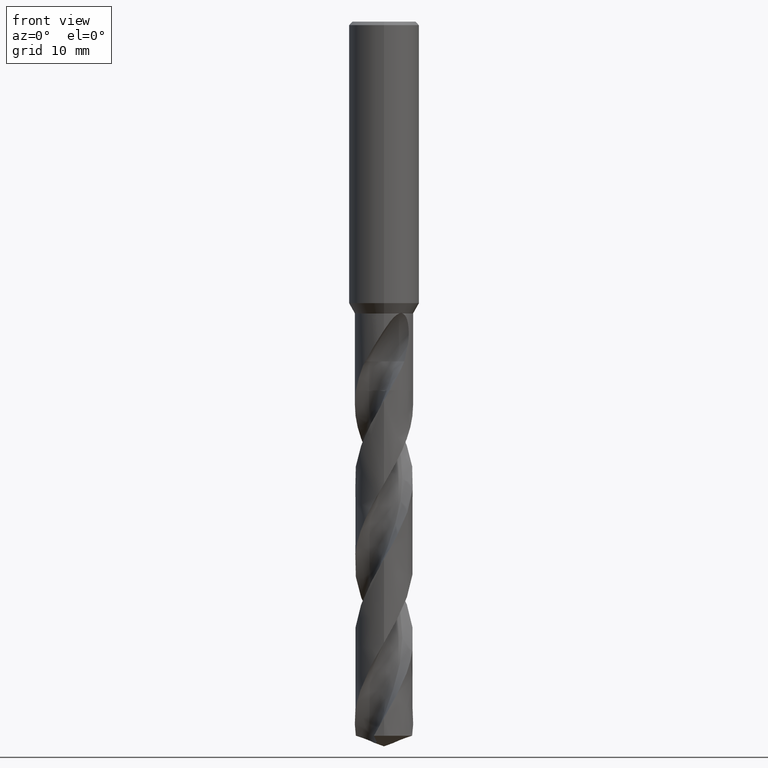
[diagram: clean part render]
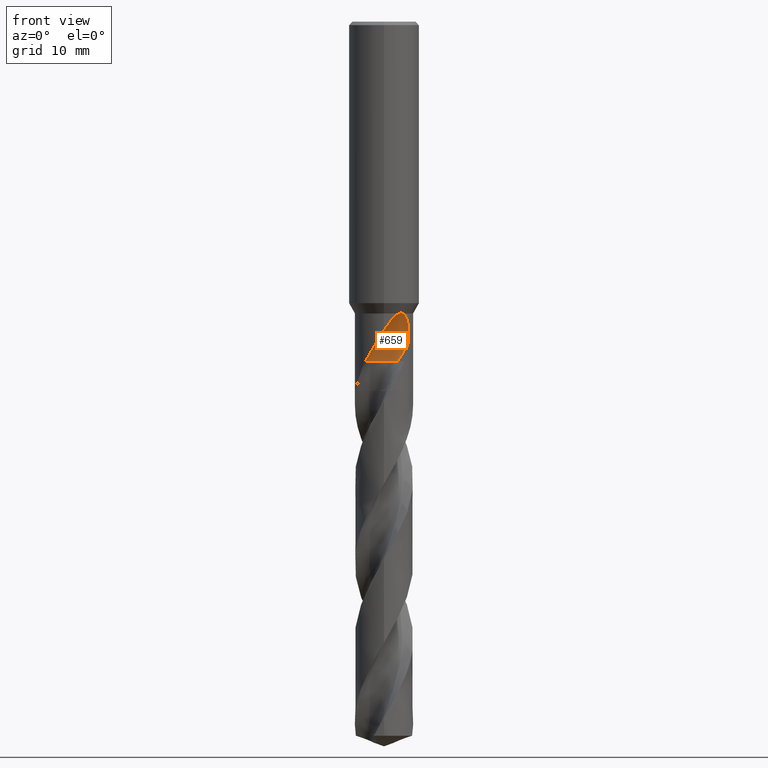
[diagram: same view with one face highlighted and labeled with its STEP entity id]
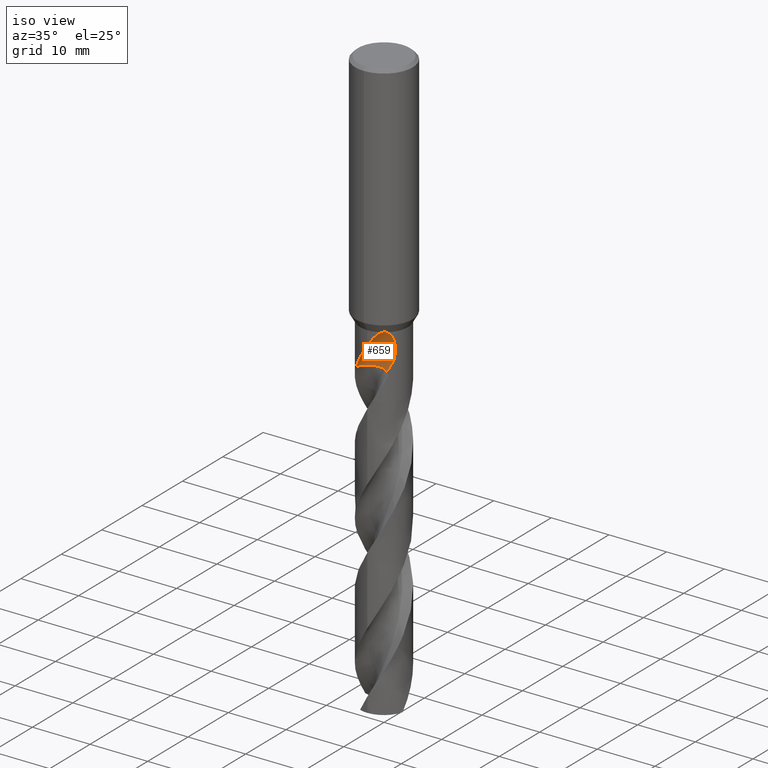
[diagram: same view with one face highlighted and labeled with its STEP entity id]
A machine part, front view. The second image highlights one B-rep face of the part: STEP entity #659.
A second angle (iso view) of the same face is appended — the face is thin or edge-on in the first view.
In plain terms, the highlighted face is a SurfaceOfRevolution surface.
Its self-contained STEP definition (entity closure, byte-faithful):
#413=EDGE_CURVE('',#805,#531,#994,.T.);
#417=VERTEX_POINT('',#998);
#463=EDGE_CURVE('',#815,#759,#1051,.T.);
#497=VERTEX_POINT('',#1088);
#509=EDGE_CURVE('',#805,#417,#1101,.T.);
#531=VERTEX_POINT('',#1125);
#617=EDGE_CURVE('',#531,#715,#1218,.T.);
#633=EDGE_CURVE('',#497,#815,#1236,.T.);
#659=ADVANCED_FACE('',(#1263),#1264,.F.);
#715=VERTEX_POINT('',#1325);
#737=EDGE_CURVE('',#715,#759,#1348,.T.);
#759=VERTEX_POINT('',#1373);
#765=EDGE_CURVE('',#417,#497,#1379,.T.);
#805=VERTEX_POINT('',#1423);
#815=VERTEX_POINT('',#1435);
#994=CIRCLE('',#2428,2.76666667);
#998=CARTESIAN_POINT('',(1.22860231174271E-012,-4.15,-43.8684424714781));
#1051=B_SPLINE_CURVE_WITH_KNOTS('',3,(#2738,#2739,#2740,#2741,#2742,#2743,#2744,#2745,#2746,#2747,#2748,#2749),.UNSPECIFIED.,.F.,.F.,(4,2,2,2,2,4),(0.0,0.393521227080139,0.909762333545459,1.67811237082579,2.75520816968707,3.80387425481552),.UNSPECIFIED.);
#1088=CARTESIAN_POINT('',(2.21231897514117,-3.51114578908799,-41.4722431864335));
#1101=B_SPLINE_CURVE_WITH_KNOTS('',3,(#3149,#3150,#3151,#3152,#3153,#3154,#3155,#3156,#3157,#3158,#3159,#3160,#3161,#3162,#3163,#3164,#3165,#3166),.UNSPECIFIED.,.F.,.F.,(4,2,2,2,2,2,2,2,4),(0.0,2.03326758379157,3.14347908007302,4.14905131362865,5.31728427381029,6.7205993800284,7.6733041255169,8.09556133462203,8.45570941259952),.UNSPECIFIED.);
#1125=CARTESIAN_POINT('',(0.44468185048592,-1.28095640294864,-48.2798));
#1218=CIRCLE('',#5980,2.76666667);
#1236=B_SPLINE_CURVE_WITH_KNOTS('',3,(#6005,#6006,#6007,#6008,#6009,#6010,#6011,#6012,#6013,#6014,#6015,#6016),.UNSPECIFIED.,.F.,.F.,(4,2,2,2,2,4),(0.0,0.185076494862282,0.294599534990384,0.384634572485625,0.482389888906676,0.592691298384375),.UNSPECIFIED.);
#1263=FACE_OUTER_BOUND('',#6401,.T.);
#1264=SURFACE_OF_REVOLUTION('',#6402,#6403);
#1325=CARTESIAN_POINT('',(1.95632876356909,-2.05533790643091,-48.2798));
#1348=CIRCLE('',#8531,18.0328286013497);
#1373=CARTESIAN_POINT('',(3.37661497775654,-2.41266891470633,-46.0073420573001));
#1379=B_SPLINE_CURVE_WITH_KNOTS('',3,(#8591,#8592,#8593,#8594,#8595,#8596,#8597,#8598,#8599,#8600,#8601,#8602,#8603,#8604,#8605,#8606,#8607,#8608),.UNSPECIFIED.,.F.,.F.,(4,2,2,2,2,2,2,2,4),(0.0,2.03326758379157,3.14347908007302,4.14905131362865,5.31728427381029,6.7205993800284,7.6733041255169,8.09556133462203,8.45570941259952),.UNSPECIFIED.);
#1423=CARTESIAN_POINT('',(-2.64444167893907,-3.19834773073378,-48.2798));
#1435=CARTESIAN_POINT('',(2.61944397880986,-3.21885278350483,-41.4722431864335));
#2428=AXIS2_PLACEMENT_3D('',#9987,#9988,#9989);
#2738=CARTESIAN_POINT('',(2.61944397880986,-3.21885278350483,-41.4722431864335));
#2739=CARTESIAN_POINT('',(2.71814561673439,-3.13853118181959,-41.5040704963807));
#2740=CARTESIAN_POINT('',(2.80609385156726,-3.05943981220061,-41.5596837560606));
#2741=CARTESIAN_POINT('',(2.98692113836522,-2.88464365442809,-41.7293698690064));
#2742=CARTESIAN_POINT('',(3.07069257959071,-2.79364208312335,-41.8541435667395));
#2743=CARTESIAN_POINT('',(3.24205546645391,-2.59540762264652,-42.1941475599753));
#2744=CARTESIAN_POINT('',(3.32309713499428,-2.48809591046378,-42.4471106636784));
#2745=CARTESIAN_POINT('',(3.46954503968898,-2.28178919264032,-43.145175146952));
#2746=CARTESIAN_POINT('',(3.51873467288002,-2.20024841585317,-43.6391328496406));
#2747=CARTESIAN_POINT('',(3.52844767750107,-2.18463709929342,-44.7291167994089));
#2748=CARTESIAN_POINT('',(3.49439603385498,-2.24783018540792,-45.3374327453989));
#2749=CARTESIAN_POINT('',(3.37661497775654,-2.41266891470634,-46.0073420573001));
#3149=CARTESIAN_POINT('',(-2.64444167893907,-3.19834773073378,-48.2798));
#3150=CARTESIAN_POINT('',(-2.37069263388147,-3.42468753030085,-47.7025784108858));
#3151=CARTESIAN_POINT('',(-2.055943266371,-3.62588788415665,-47.1644216501173));
#3152=CARTESIAN_POINT('',(-1.50711421113446,-3.87250112301909,-46.2653939935514));
#3153=CARTESIAN_POINT('',(-1.3096197516991,-3.94344242554094,-45.9490858642741));
#3154=CARTESIAN_POINT('',(-0.927295442727689,-4.04946664666863,-45.3367953668256));
#3155=CARTESIAN_POINT('',(-0.74417266191231,-4.08692475195319,-45.0436669727484));
#3156=CARTESIAN_POINT('',(-0.347788991518323,-4.14098603113344,-44.4118975065021));
#3157=CARTESIAN_POINT('',(-0.13121710712528,-4.15367811971849,-44.0683112547877));
#3158=CARTESIAN_POINT('',(0.349733653231838,-4.14356144907311,-43.3332668180174));
#3159=CARTESIAN_POINT('',(0.634888878283864,-4.11227091069935,-42.9150184827953));
#3160=CARTESIAN_POINT('',(1.12944671698399,-3.99861926396886,-42.2947468363555));
#3161=CARTESIAN_POINT('',(1.35398349194747,-3.93112575205028,-42.0411589884207));
#3162=CARTESIAN_POINT('',(1.69265158482459,-3.79079217755789,-41.7507051851405));
#3163=CARTESIAN_POINT('',(1.80244002013251,-3.74031235496902,-41.6685582249549));
#3164=CARTESIAN_POINT('',(2.01182547542569,-3.63137197013398,-41.5457146731982));
#3165=CARTESIAN_POINT('',(2.11146783853084,-3.57469053960247,-41.5001580057085));
#3166=CARTESIAN_POINT('',(2.21231897514118,-3.51114578908798,-41.4722431864335));
#5980=AXIS2_PLACEMENT_3D('',#10200,#10201,#10202);
#6005=CARTESIAN_POINT('',(2.21231897514117,-3.51114578908799,-41.4722431864335));
#6006=CARTESIAN_POINT('',(2.26127963708749,-3.50563145401224,-41.4351167954539));
#6007=CARTESIAN_POINT('',(2.31558432815899,-3.49462372917199,-41.3998431937666));
#6008=CARTESIAN_POINT('',(2.40080458269787,-3.46134277876283,-41.3642980692868));
#6009=CARTESIAN_POINT('',(2.43248815361528,-3.44539775295832,-41.3555080811553));
#6010=CARTESIAN_POINT('',(2.48739899304519,-3.40809257634053,-41.3524460870933));
#6011=CARTESIAN_POINT('',(2.50973830828782,-3.38914493891117,-41.3559507865046));
#6012=CARTESIAN_POINT('',(2.55116056342029,-3.34558428726629,-41.3731965712625));
#6013=CARTESIAN_POINT('',(2.56863139685984,-3.32185887073414,-41.387300975733));
#6014=CARTESIAN_POINT('',(2.59878898005319,-3.27135931858906,-41.423960204363));
#6015=CARTESIAN_POINT('',(2.61062950086474,-3.24449463414639,-41.4474317417817));
#6016=CARTESIAN_POINT('',(2.61944397880986,-3.21885278350483,-41.4722431864335));
#6401=EDGE_LOOP('',(#10236,#10237,#10238,#10239,#10240,#10241,#10242));
#6402=(B_SPLINE_CURVE(3,(#10244,#10245,#10246,#10247,#10248,#10249,#10250,#10251,#10252),.UNSPECIFIED.,.F.,.F.)B_SPLINE_CURVE_WITH_KNOTS((4,1,3,1,4),(-2.85637157263245,-2.55358257051694,-2.25079356840142,-1.94800456628591,-1.64521556417039),.UNSPECIFIED.)RATIONAL_B_SPLINE_CURVE((1.09168117980211,1.03056039326737,0.96943960673263,1.03056039326737,1.09168117980211,1.03056039326737,0.969439606732631,1.03056039326737,1.09168117980211))BOUNDED_CURVE()REPRESENTATION_ITEM('')GEOMETRIC_REPRESENTATION_ITEM()CURVE());
#6403=AXIS1_PLACEMENT('',#10259,#10260);
#8531=AXIS2_PLACEMENT_3D('',#10325,#10326,#10327);
#8591=CARTESIAN_POINT('',(-2.64444167893907,-3.19834773073378,-48.2798));
#8592=CARTESIAN_POINT('',(-2.37069263388147,-3.42468753030085,-47.7025784108858));
#8593=CARTESIAN_POINT('',(-2.055943266371,-3.62588788415665,-47.1644216501173));
#8594=CARTESIAN_POINT('',(-1.50711421113446,-3.87250112301909,-46.2653939935514));
#8595=CARTESIAN_POINT('',(-1.3096197516991,-3.94344242554094,-45.9490858642741));
#8596=CARTESIAN_POINT('',(-0.927295442727689,-4.04946664666863,-45.3367953668256));
#8597=CARTESIAN_POINT('',(-0.74417266191231,-4.08692475195319,-45.0436669727484));
#8598=CARTESIAN_POINT('',(-0.347788991518323,-4.14098603113344,-44.4118975065021));
#8599=CARTESIAN_POINT('',(-0.13121710712528,-4.15367811971849,-44.0683112547877));
#8600=CARTESIAN_POINT('',(0.349733653231838,-4.14356144907311,-43.3332668180174));
#8601=CARTESIAN_POINT('',(0.634888878283864,-4.11227091069935,-42.9150184827953));
#8602=CARTESIAN_POINT('',(1.12944671698399,-3.99861926396886,-42.2947468363555));
#8603=CARTESIAN_POINT('',(1.35398349194747,-3.93112575205028,-42.0411589884207));
#8604=CARTESIAN_POINT('',(1.69265158482459,-3.79079217755789,-41.7507051851405));
#8605=CARTESIAN_POINT('',(1.80244002013251,-3.74031235496902,-41.6685582249549));
#8606=CARTESIAN_POINT('',(2.01182547542569,-3.63137197013398,-41.5457146731982));
#8607=CARTESIAN_POINT('',(2.11146783853084,-3.57469053960247,-41.5001580057085));
#8608=CARTESIAN_POINT('',(2.21231897514118,-3.51114578908798,-41.4722431864335));
#9987=CARTESIAN_POINT('',(-1.66333006212766E-005,-4.01165003669938,-48.2798));
#9988=DIRECTION('',(-0.0,0.0,-1.0));
#9989=DIRECTION('',(-0.707100769124628,-0.707112793197351,0.0));
#10200=CARTESIAN_POINT('',(-1.66333006212766E-005,-4.01165003669938,-48.2798));
#10201=DIRECTION('',(-0.0,0.0,-1.0));
#10202=DIRECTION('',(-0.707100769124628,-0.707112793197351,0.0));
#10236=ORIENTED_EDGE('',*,*,#463,.F.);
#10237=ORIENTED_EDGE('',*,*,#633,.F.);
#10238=ORIENTED_EDGE('',*,*,#765,.F.);
#10239=ORIENTED_EDGE('',*,*,#509,.F.);
#10240=ORIENTED_EDGE('',*,*,#413,.T.);
#10241=ORIENTED_EDGE('',*,*,#617,.T.);
#10242=ORIENTED_EDGE('',*,*,#737,.T.);
#10244=CARTESIAN_POINT('',(1.95632876356909,-2.05533790643091,-48.2798));
#10245=CARTESIAN_POINT('',(1.57313931853816,-1.67214194535876,-48.2798));
#10246=CARTESIAN_POINT('',(0.57673408917427,-1.12765674936098,-48.2798));
#10247=CARTESIAN_POINT('',(-0.552438151116099,-1.24706178075448,-48.2798));
#10248=CARTESIAN_POINT('',(-1.05352795134319,-1.45341659042339,-48.2798));
#10249=CARTESIAN_POINT('',(-1.55461775157027,-1.6597714000923,-48.2798));
#10250=CARTESIAN_POINT('',(-2.44041746623552,-2.3701560672012,-48.2798));
#10251=CARTESIAN_POINT('',(-2.76444116324636,-3.45840978464943,-48.2798));
#10252=CARTESIAN_POINT('',(-2.76666011024005,-4.00032155942402,-48.2798));
#10259=CARTESIAN_POINT('',(1.40679821200474,-20.05833335,-49.159048882503));
#10260=DIRECTION('',(-0.847998304005088,0.0,0.52999894000318));
#10325=CARTESIAN_POINT('',(1.40679821200474,-20.05833335,-49.159048882503));
#10326=DIRECTION('',(0.847998304005088,5.46263902303699E-018,-0.52999894000318));
#10327=DIRECTION('',(0.0535598120559809,0.994880693176724,0.0856956992895694));